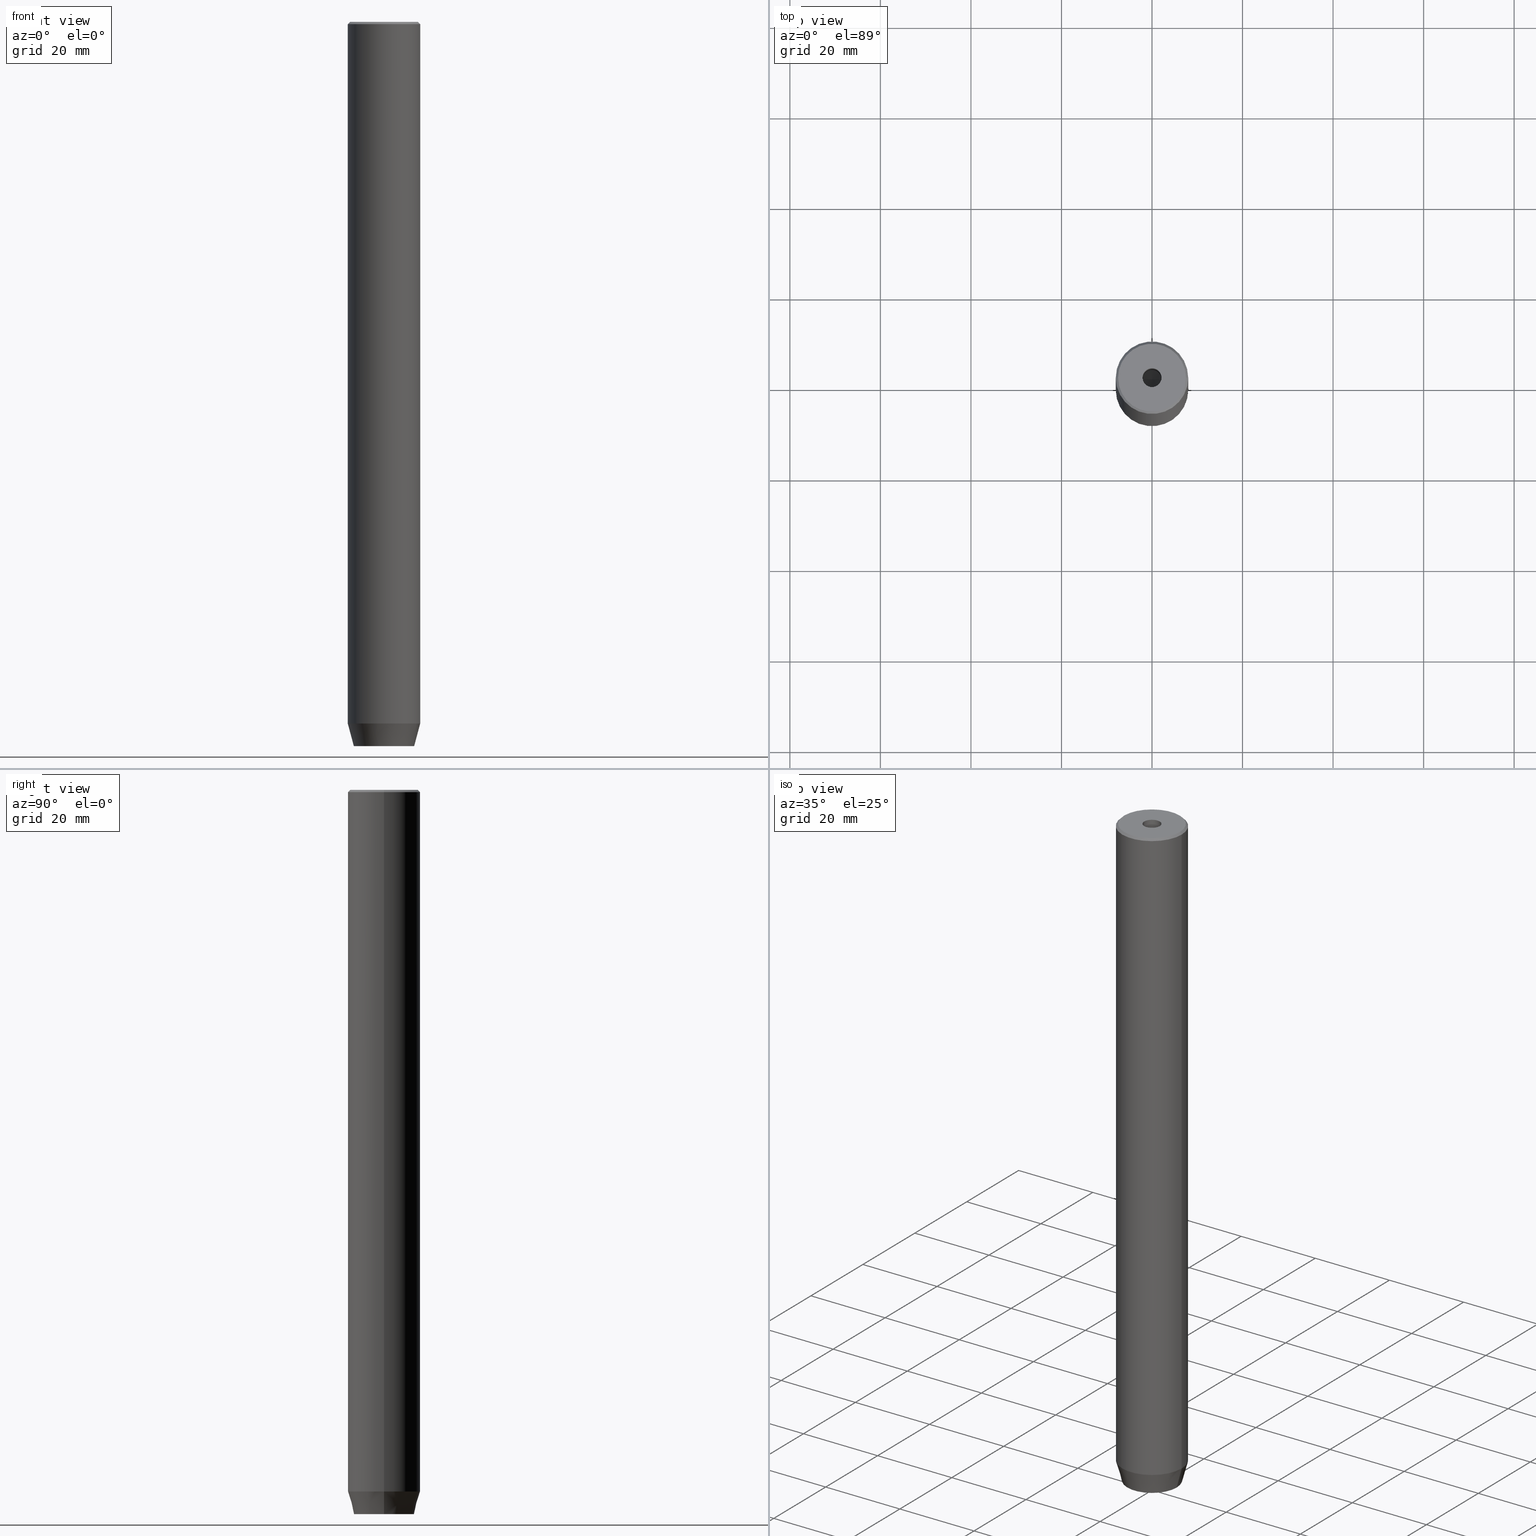
[diagram: canonical four-view strip — front | top / right | iso, engineering-drawing reading convention]
A machine part, canonical four-view strip (front | top / right | iso — engineering-drawing reading convention). The complete STEP part file that produces these views, byte-faithful:
ISO-10303-21;
HEADER;
FILE_DESCRIPTION (( 'STEP AP203' ),
    '1' );
FILE_NAME ('2d3c.STEP',
    '2024-01-02T20:38:46',
    ( '' ),
    ( '' ),
    'SwSTEP 2.0',
    'SolidWorks 2019',
    '' );
FILE_SCHEMA (( 'CONFIG_CONTROL_DESIGN' ));
ENDSEC;

DATA;
#1 = VERTEX_POINT ( 'NONE', #272 ) ;
#2 = ORIENTED_EDGE ( 'NONE', *, *, #9, .F. ) ;
#3 = CARTESIAN_POINT ( 'NONE',  ( -8.000000000000000000, 9.797174393178825657E-16, -154.9999999999999716 ) ) ;
#4 =( LENGTH_UNIT ( ) NAMED_UNIT ( * ) SI_UNIT ( .MILLI., .METRE. ) );
#5 = FACE_BOUND ( 'NONE', #535, .T. ) ;
#6 =( NAMED_UNIT ( * ) PLANE_ANGLE_UNIT ( ) SI_UNIT ( $, .RADIAN. ) );
#7 = AXIS2_PLACEMENT_3D ( 'NONE', #284, #422, #325 ) ;
#8 = LINE ( 'NONE', #125, #274 ) ;
#9 = EDGE_CURVE ( 'NONE', #267, #299, #176, .T. ) ;
#10 = CARTESIAN_POINT ( 'NONE',  ( -3.000000000000000000, -1.732050807568877859, -157.2000000000000171 ) ) ;
#11 = CALENDAR_DATE ( 2024, 2, 1 ) ;
#12 = FACE_OUTER_BOUND ( 'NONE', #342, .T. ) ;
#13 = ORIENTED_EDGE ( 'NONE', *, *, #250, .F. ) ;
#14 = ORIENTED_EDGE ( 'NONE', *, *, #431, .T. ) ;
#15 = PERSON_AND_ORGANIZATION ( #276, #462 ) ;
#16 = AXIS2_PLACEMENT_3D ( 'NONE', #577, #337, #525 ) ;
#17 = AXIS2_PLACEMENT_3D ( 'NONE', #231, #286, #238 ) ;
#18 = CARTESIAN_POINT ( 'NONE',  ( -1.499999999999999556, 2.598076211353316012, -160.0000000000000000 ) ) ;
#19 = VECTOR ( 'NONE', #202, 1000.000000000000000 ) ;
#20 = VECTOR ( 'NONE', #394, 1000.000000000000000 ) ;
#21 = COORDINATED_UNIVERSAL_TIME_OFFSET ( 1, 0, .AHEAD. ) ;
#22 = DIRECTION ( 'NONE',  ( -0.000000000000000000, -0.000000000000000000, 1.000000000000000000 ) ) ;
#23 = ORIENTED_EDGE ( 'NONE', *, *, #436, .F. ) ;
#24 = APPROVAL_STATUS ( 'not_yet_approved' ) ;
#25 = CARTESIAN_POINT ( 'NONE',  ( 0.000000000000000000, 0.000000000000000000, -154.9999999999999716 ) ) ;
#26 = ORIENTED_EDGE ( 'NONE', *, *, #271, .F. ) ;
#27 = DIRECTION ( 'NONE',  ( -0.000000000000000000, -0.000000000000000000, 1.000000000000000000 ) ) ;
#28 = AXIS2_PLACEMENT_3D ( 'NONE', #107, #409, #319 ) ;
#29 = ORIENTED_EDGE ( 'NONE', *, *, #132, .F. ) ;
#30 = ORIENTED_EDGE ( 'NONE', *, *, #390, .F. ) ;
#31 = VECTOR ( 'NONE', #388, 1000.000000000000000 ) ;
#32 = CIRCLE ( 'NONE', #154, 7.499999999999978684 ) ;
#33 = EDGE_CURVE ( 'NONE', #1, #355, #491, .T. ) ;
#34 = DIRECTION ( 'NONE',  ( 0.2588190451025212391, 0.000000000000000000, 0.9659258262890680902 ) ) ;
#35 = VERTEX_POINT ( 'NONE', #217 ) ;
#36 = EDGE_CURVE ( 'NONE', #411, #204, #487, .T. ) ;
#37 = DIRECTION ( 'NONE',  ( 0.7071067811865474617, 8.659560562354932858E-17, -0.7071067811865474617 ) ) ;
#38 = DIRECTION ( 'NONE',  ( -0.000000000000000000, -0.000000000000000000, -1.000000000000000000 ) ) ;
#39 = AXIS2_PLACEMENT_3D ( 'NONE', #314, #428, #123 ) ;
#40 = DIRECTION ( 'NONE',  ( -0.2588190451025212391, 3.169619151431771721E-17, 0.9659258262890680902 ) ) ;
#41 = CYLINDRICAL_SURFACE ( 'NONE', #194, 2.099999999999997424 ) ;
#42 = VERTEX_POINT ( 'NONE', #139 ) ;
#43 = DIRECTION ( 'NONE',  ( 1.000000000000000000, 0.000000000000000000, 0.000000000000000000 ) ) ;
#44 = ADVANCED_FACE ( 'NONE', ( #446 ), #339, .F. ) ;
#45 = DIRECTION ( 'NONE',  ( -0.000000000000000000, -0.000000000000000000, -1.000000000000000000 ) ) ;
#46 = VERTEX_POINT ( 'NONE', #384 ) ;
#47 = CC_DESIGN_APPROVAL ( #586, ( #469 ) ) ;
#48 = CONICAL_SURFACE ( 'NONE', #523, 2.099999999999996092, 1.029744258676652091 ) ;
#49 = PLANE ( 'NONE',  #92 ) ;
#50 = VERTEX_POINT ( 'NONE', #221 ) ;
#51 = CARTESIAN_POINT ( 'NONE',  ( -2.099999999999997424, 2.571758278209438506E-16, 0.000000000000000000 ) ) ;
#52 = DIRECTION ( 'NONE',  ( -0.000000000000000000, -0.000000000000000000, 1.000000000000000000 ) ) ;
#53 = EDGE_CURVE ( 'NONE', #35, #397, #253, .T. ) ;
#54 = DIRECTION ( 'NONE',  ( 0.8660254037844385966, -0.5000000000000001110, 0.000000000000000000 ) ) ;
#55 = CARTESIAN_POINT ( 'NONE',  ( 1.500000000000000222, -2.598076211353315568, -160.0000000000000000 ) ) ;
#56 = LOCAL_TIME ( 21, 38, 46.00000000000000000, #493 ) ;
#57 = APPROVAL_ROLE ( '' ) ;
#58 = DIRECTION ( 'NONE',  ( -0.000000000000000000, -0.000000000000000000, 1.000000000000000000 ) ) ;
#59 = EDGE_CURVE ( 'NONE', #117, #42, #265, .T. ) ;
#60 = DIRECTION ( 'NONE',  ( 1.000000000000000000, 0.000000000000000000, 0.000000000000000000 ) ) ;
#61 = ORIENTED_EDGE ( 'NONE', *, *, #315, .F. ) ;
#62 = SHAPE_DEFINITION_REPRESENTATION ( #222, #137 ) ;
#63 = CARTESIAN_POINT ( 'NONE',  ( -1.500000000000000666, -2.598076211353316456, -160.0000000000000000 ) ) ;
#64 = APPROVAL_STATUS ( 'not_yet_approved' ) ;
#65 = AXIS2_PLACEMENT_3D ( 'NONE', #434, #169, #131 ) ;
#66 = DIRECTION ( 'NONE',  ( 1.000000000000000000, 0.000000000000000000, 0.000000000000000000 ) ) ;
#67 = ORIENTED_EDGE ( 'NONE', *, *, #277, .T. ) ;
#68 = ADVANCED_FACE ( 'NONE', ( #205 ), #308, .F. ) ;
#69 = DIRECTION ( 'NONE',  ( -0.000000000000000000, -0.000000000000000000, 1.000000000000000000 ) ) ;
#70 = LINE ( 'NONE', #245, #232 ) ;
#71 = ORIENTED_EDGE ( 'NONE', *, *, #208, .T. ) ;
#72 = ADVANCED_FACE ( 'NONE', ( #580 ), #293, .F. ) ;
#73 = LOCAL_TIME ( 21, 38, 46.00000000000000000, #278 ) ;
#74 = CARTESIAN_POINT ( 'NONE',  ( -3.000000000000000000, -1.732050807568877859, -157.2000000000000171 ) ) ;
#75 = AXIS2_PLACEMENT_3D ( 'NONE', #508, #22, #190 ) ;
#76 = EDGE_CURVE ( 'NONE', #375, #90, #8, .T. ) ;
#77 = DIRECTION ( 'NONE',  ( 1.000000000000000000, 0.000000000000000000, 0.000000000000000000 ) ) ;
#78 = ORIENTED_EDGE ( 'NONE', *, *, #170, .T. ) ;
#79 = DIRECTION ( 'NONE',  ( 0.8660254037844387076, 0.4999999999999999445, 0.000000000000000000 ) ) ;
#80 = VERTEX_POINT ( 'NONE', #361 ) ;
#81 = FACE_OUTER_BOUND ( 'NONE', #470, .T. ) ;
#82 = VECTOR ( 'NONE', #96, 1000.000000000000000 ) ;
#83 = PLANE ( 'NONE',  #346 ) ;
#84 =( NAMED_UNIT ( * ) SI_UNIT ( $, .STERADIAN. ) SOLID_ANGLE_UNIT ( ) );
#85 = EDGE_CURVE ( 'NONE', #236, #411, #473, .T. ) ;
#86 = DIRECTION ( 'NONE',  ( 0.000000000000000000, 0.000000000000000000, -1.000000000000000000 ) ) ;
#87 = ADVANCED_FACE ( 'NONE', ( #341 ), #295, .F. ) ;
#88 = LINE ( 'NONE', #306, #82 ) ;
#89 = UNCERTAINTY_MEASURE_WITH_UNIT (LENGTH_MEASURE( 1.000000000000000082E-05 ), #4, 'distance_accuracy_value', 'NONE');
#90 = VERTEX_POINT ( 'NONE', #403 ) ;
#91 = AXIS2_PLACEMENT_3D ( 'NONE', #466, #241, #382 ) ;
#92 = AXIS2_PLACEMENT_3D ( 'NONE', #490, #263, #93 ) ;
#93 = DIRECTION ( 'NONE',  ( 2.503857664561933362E-16, -1.000000000000000000, 0.000000000000000000 ) ) ;
#94 = ORIENTED_EDGE ( 'NONE', *, *, #155, .F. ) ;
#95 = DIRECTION ( 'NONE',  ( -0.000000000000000000, -0.000000000000000000, 1.000000000000000000 ) ) ;
#96 = DIRECTION ( 'NONE',  ( -0.000000000000000000, -0.000000000000000000, -1.000000000000000000 ) ) ;
#97 = CARTESIAN_POINT ( 'NONE',  ( -3.000000000000000444, -7.511572993685800087E-16, -160.0000000000000000 ) ) ;
#98 = ORIENTED_EDGE ( 'NONE', *, *, #208, .F. ) ;
#99 = ORIENTED_EDGE ( 'NONE', *, *, #132, .T. ) ;
#100 = ORIENTED_EDGE ( 'NONE', *, *, #436, .T. ) ;
#101 = CALENDAR_DATE ( 2024, 2, 1 ) ;
#102 = VECTOR ( 'NONE', #40, 1000.000000000000114 ) ;
#103 = DIRECTION ( 'NONE',  ( -0.000000000000000000, -0.000000000000000000, 1.000000000000000000 ) ) ;
#104 = ADVANCED_FACE ( 'NONE', ( #5, #552 ), #83, .T. ) ;
#105 = PERSON_AND_ORGANIZATION ( #276, #462 ) ;
#106 = CARTESIAN_POINT ( 'NONE',  ( -6.660254037844374864, 8.976816591066587293E-16, -160.0000000000000000 ) ) ;
#107 = CARTESIAN_POINT ( 'NONE',  ( 0.000000000000000000, 0.000000000000000000, 0.000000000000000000 ) ) ;
#108 = VERTEX_POINT ( 'NONE', #134 ) ;
#109 = CARTESIAN_POINT ( 'NONE',  ( 8.000000000000000000, 0.000000000000000000, 0.000000000000000000 ) ) ;
#110 = VECTOR ( 'NONE', #444, 1000.000000000000000 ) ;
#111 = AXIS2_PLACEMENT_3D ( 'NONE', #219, #160, #452 ) ;
#112 = CARTESIAN_POINT ( 'NONE',  ( 0.000000000000000000, 0.000000000000000000, -154.9999999999999716 ) ) ;
#113 = VERTEX_POINT ( 'NONE', #10 ) ;
#114 = ORIENTED_EDGE ( 'NONE', *, *, #431, .F. ) ;
#115 = ADVANCED_FACE ( 'NONE', ( #146 ), #316, .F. ) ;
#116 = CARTESIAN_POINT ( 'NONE',  ( 0.000000000000000000, 0.000000000000000000, -1.990051048614449116E-16 ) ) ;
#117 = VERTEX_POINT ( 'NONE', #106 ) ;
#118 = CARTESIAN_POINT ( 'NONE',  ( -5.207640850796248781E-15, 0.000000000000000000, -21.26180729995787999 ) ) ;
#119 = CONICAL_SURFACE ( 'NONE', #451, 7.499999999999978684, 0.7853981633974482790 ) ;
#120 = DIRECTION ( 'NONE',  ( -0.000000000000000000, -0.000000000000000000, -1.000000000000000000 ) ) ;
#121 = ORIENTED_EDGE ( 'NONE', *, *, #53, .T. ) ;
#122 = LINE ( 'NONE', #472, #558 ) ;
#123 = DIRECTION ( 'NONE',  ( -0.8660254037844385966, 0.5000000000000001110, 0.000000000000000000 ) ) ;
#124 = LINE ( 'NONE', #157, #289 ) ;
#125 = CARTESIAN_POINT ( 'NONE',  ( 2.099999999999996092, 0.000000000000000000, -20.00000000000000000 ) ) ;
#126 = CARTESIAN_POINT ( 'NONE',  ( -2.099999999999998757, 2.571758278209440478E-16, -1.990051048614449116E-16 ) ) ;
#127 = CC_DESIGN_APPROVAL ( #348, ( #378 ) ) ;
#128 = CIRCLE ( 'NONE', #75, 2.099999999999998757 ) ;
#129 = ADVANCED_FACE ( 'NONE', ( #570 ), #379, .F. ) ;
#130 = DIRECTION ( 'NONE',  ( 0.8660254037844385966, 0.5000000000000001110, 0.000000000000000000 ) ) ;
#131 = DIRECTION ( 'NONE',  ( 1.000000000000000000, 0.000000000000000000, 0.000000000000000000 ) ) ;
#132 = EDGE_CURVE ( 'NONE', #299, #80, #501, .T. ) ;
#133 = CARTESIAN_POINT ( 'NONE',  ( -2.168404344971008868E-16, -3.464101615137754830, -157.2000000000000171 ) ) ;
#134 = CARTESIAN_POINT ( 'NONE',  ( 8.000000000000000000, 0.000000000000000000, -154.9999999999999716 ) ) ;
#135 = CC_DESIGN_PERSON_AND_ORGANIZATION_ASSIGNMENT ( #141, #180, ( #378 ) ) ;
#136 = ORIENTED_EDGE ( 'NONE', *, *, #271, .T. ) ;
#137 = ADVANCED_BREP_SHAPE_REPRESENTATION ( '2d3c', ( #529, #28 ), #405 ) ;
#138 = DATE_TIME_ROLE ( 'creation_date' ) ;
#139 = CARTESIAN_POINT ( 'NONE',  ( -8.000000000000000000, 9.797174393178825657E-16, -154.9999999999999716 ) ) ;
#140 = EDGE_LOOP ( 'NONE', ( #229, #326, #302, #540 ) ) ;
#141 = PERSON_AND_ORGANIZATION ( #276, #462 ) ;
#142 = ADVANCED_FACE ( 'NONE', ( #461 ), #214, .T. ) ;
#143 = DIRECTION ( 'NONE',  ( -0.8660254037844385966, 0.5000000000000001110, 0.000000000000000000 ) ) ;
#144 = AXIS2_PLACEMENT_3D ( 'NONE', #173, #175, #541 ) ;
#145 = APPROVAL_DATE_TIME ( #189, #166 ) ;
#146 = FACE_OUTER_BOUND ( 'NONE', #562, .T. ) ;
#147 = DATE_AND_TIME ( #224, #73 ) ;
#148 = CARTESIAN_POINT ( 'NONE',  ( 3.000000000000000000, 0.000000000000000000, -157.2000000000000171 ) ) ;
#149 = PRODUCT ( '2d3c', '2d3c', '', ( #502 ) ) ;
#150 = ORIENTED_EDGE ( 'NONE', *, *, #155, .T. ) ;
#151 = DIRECTION ( 'NONE',  ( -0.000000000000000000, -0.000000000000000000, 1.000000000000000000 ) ) ;
#152 = EDGE_LOOP ( 'NONE', ( #247, #367, #30, #61 ) ) ;
#153 = DIRECTION ( 'NONE',  ( 1.000000000000000000, 0.000000000000000000, 0.000000000000000000 ) ) ;
#154 = AXIS2_PLACEMENT_3D ( 'NONE', #565, #364, #66 ) ;
#155 = EDGE_CURVE ( 'NONE', #182, #266, #396, .T. ) ;
#156 = CARTESIAN_POINT ( 'NONE',  ( 3.000000000000000000, -1.732050807568876527, -160.0000000000000000 ) ) ;
#157 = CARTESIAN_POINT ( 'NONE',  ( -8.000000000000000000, 9.797174393178825657E-16, 0.000000000000000000 ) ) ;
#158 = DIRECTION ( 'NONE',  ( 1.000000000000000000, 0.000000000000000000, 0.000000000000000000 ) ) ;
#159 = VECTOR ( 'NONE', #120, 1000.000000000000000 ) ;
#160 = DIRECTION ( 'NONE',  ( -0.4999999999999999445, 0.8660254037844387076, 0.000000000000000000 ) ) ;
#161 = LINE ( 'NONE', #340, #338 ) ;
#162 = ORIENTED_EDGE ( 'NONE', *, *, #575, .T. ) ;
#163 = CARTESIAN_POINT ( 'NONE',  ( 0.000000000000000000, 0.000000000000000000, 0.000000000000000000 ) ) ;
#164 = LINE ( 'NONE', #252, #223 ) ;
#165 = EDGE_LOOP ( 'NONE', ( #216, #100, #150, #98 ) ) ;
#166 = APPROVAL ( #64, 'NEUR�EN�' ) ;
#167 = FACE_OUTER_BOUND ( 'NONE', #514, .T. ) ;
#168 = AXIS2_PLACEMENT_3D ( 'NONE', #112, #58, #366 ) ;
#169 = DIRECTION ( 'NONE',  ( -0.000000000000000000, -0.000000000000000000, 1.000000000000000000 ) ) ;
#170 = EDGE_CURVE ( 'NONE', #42, #108, #407, .T. ) ;
#171 = ORIENTED_EDGE ( 'NONE', *, *, #453, .F. ) ;
#172 = ORIENTED_EDGE ( 'NONE', *, *, #483, .F. ) ;
#173 = CARTESIAN_POINT ( 'NONE',  ( 0.000000000000000000, 0.000000000000000000, -157.2000000000000171 ) ) ;
#174 = DIRECTION ( 'NONE',  ( 0.8571673007021111124, 0.000000000000000000, 0.5150380749100562650 ) ) ;
#175 = DIRECTION ( 'NONE',  ( 0.000000000000000000, 0.000000000000000000, -1.000000000000000000 ) ) ;
#176 = LINE ( 'NONE', #51, #438 ) ;
#177 = VECTOR ( 'NONE', #402, 1000.000000000000000 ) ;
#178 = DIRECTION ( 'NONE',  ( -0.000000000000000000, -0.000000000000000000, 1.000000000000000000 ) ) ;
#179 = ORIENTED_EDGE ( 'NONE', *, *, #285, .F. ) ;
#180 = PERSON_AND_ORGANIZATION_ROLE ( 'design_supplier' ) ;
#181 = CARTESIAN_POINT ( 'NONE',  ( -3.000000000000000888, 1.732050807568876527, -157.2000000000000171 ) ) ;
#182 = VERTEX_POINT ( 'NONE', #512 ) ;
#183 = ORIENTED_EDGE ( 'NONE', *, *, #226, .F. ) ;
#184 = PRODUCT_RELATED_PRODUCT_CATEGORY ( 'detail', '', ( #149 ) ) ;
#185 = CYLINDRICAL_SURFACE ( 'NONE', #318, 8.000000000000000000 ) ;
#186 = COORDINATED_UNIVERSAL_TIME_OFFSET ( 1, 0, .AHEAD. ) ;
#187 = VECTOR ( 'NONE', #34, 1000.000000000000114 ) ;
#188 = FACE_OUTER_BOUND ( 'NONE', #398, .T. ) ;
#189 = DATE_AND_TIME ( #11, #297 ) ;
#190 = DIRECTION ( 'NONE',  ( 1.000000000000000000, 0.000000000000000000, 0.000000000000000000 ) ) ;
#191 = ORIENTED_EDGE ( 'NONE', *, *, #76, .F. ) ;
#192 = CARTESIAN_POINT ( 'NONE',  ( 0.000000000000000000, 0.000000000000000000, -154.9999999999999716 ) ) ;
#193 = EDGE_LOOP ( 'NONE', ( #183, #304 ) ) ;
#194 = AXIS2_PLACEMENT_3D ( 'NONE', #583, #389, #158 ) ;
#195 = DIRECTION ( 'NONE',  ( -0.8660254037844385966, 0.5000000000000001110, 0.000000000000000000 ) ) ;
#196 = EDGE_CURVE ( 'NONE', #355, #46, #560, .T. ) ;
#197 = LINE ( 'NONE', #427, #536 ) ;
#198 = LINE ( 'NONE', #530, #546 ) ;
#199 = ORIENTED_EDGE ( 'NONE', *, *, #59, .F. ) ;
#200 = EDGE_LOOP ( 'NONE', ( #569, #210, #172, #344 ) ) ;
#201 = AXIS2_PLACEMENT_3D ( 'NONE', #423, #27, #77 ) ;
#202 = DIRECTION ( 'NONE',  ( -0.000000000000000000, -0.000000000000000000, -1.000000000000000000 ) ) ;
#203 = ADVANCED_FACE ( 'NONE', ( #420 ), #380, .T. ) ;
#204 = VERTEX_POINT ( 'NONE', #556 ) ;
#205 = FACE_OUTER_BOUND ( 'NONE', #200, .T. ) ;
#206 = CARTESIAN_POINT ( 'NONE',  ( 3.000000000000000000, -1.732050807568876527, -157.2000000000000171 ) ) ;
#207 = ORIENTED_EDGE ( 'NONE', *, *, #510, .T. ) ;
#208 = EDGE_CURVE ( 'NONE', #108, #266, #456, .T. ) ;
#209 = PLANE ( 'NONE',  #327 ) ;
#210 = ORIENTED_EDGE ( 'NONE', *, *, #533, .F. ) ;
#211 = ADVANCED_FACE ( 'NONE', ( #188 ), #48, .F. ) ;
#212 = CARTESIAN_POINT ( 'NONE',  ( 6.660254037844374864, 0.000000000000000000, -160.0000000000000000 ) ) ;
#213 = LOCAL_TIME ( 21, 38, 46.00000000000000000, #186 ) ;
#214 = CONICAL_SURFACE ( 'NONE', #561, 8.000000000000000000, 0.2617993877991499629 ) ;
#215 = CARTESIAN_POINT ( 'NONE',  ( 0.000000000000000000, 0.000000000000000000, 0.000000000000000000 ) ) ;
#216 = ORIENTED_EDGE ( 'NONE', *, *, #390, .T. ) ;
#217 = CARTESIAN_POINT ( 'NONE',  ( 7.499999999999978684, 9.491012693391973982E-16, 0.000000000000000000 ) ) ;
#218 = CARTESIAN_POINT ( 'NONE',  ( 0.000000000000000000, 0.000000000000000000, -0.5000000000000213163 ) ) ;
#219 = CARTESIAN_POINT ( 'NONE',  ( -1.499999999999999556, 2.598076211353316012, -157.2000000000000171 ) ) ;
#220 = FACE_OUTER_BOUND ( 'NONE', #347, .T. ) ;
#221 = CARTESIAN_POINT ( 'NONE',  ( 3.000000000000000000, -1.732050807568876527, -157.2000000000000171 ) ) ;
#222 = PRODUCT_DEFINITION_SHAPE ( 'NONE', 'NONE',  #498 ) ;
#223 = VECTOR ( 'NONE', #38, 1000.000000000000000 ) ;
#224 = CALENDAR_DATE ( 2024, 2, 1 ) ;
#225 = DIRECTION ( 'NONE',  ( 1.000000000000000000, 0.000000000000000000, 0.000000000000000000 ) ) ;
#226 = EDGE_CURVE ( 'NONE', #521, #117, #442, .T. ) ;
#227 = DATE_AND_TIME ( #414, #585 ) ;
#228 = CARTESIAN_POINT ( 'NONE',  ( 8.000000000000000000, 0.000000000000000000, -0.5000000000000213163 ) ) ;
#229 = ORIENTED_EDGE ( 'NONE', *, *, #549, .T. ) ;
#230 = PERSON_AND_ORGANIZATION_ROLE ( 'classification_officer' ) ;
#231 = CARTESIAN_POINT ( 'NONE',  ( 3.000000000000000000, 0.000000000000000000, -157.2000000000000171 ) ) ;
#232 = VECTOR ( 'NONE', #37, 1000.000000000000114 ) ;
#233 = PERSON_AND_ORGANIZATION ( #276, #462 ) ;
#234 = CARTESIAN_POINT ( 'NONE',  ( 0.000000000000000000, 0.000000000000000000, 0.000000000000000000 ) ) ;
#235 = ORIENTED_EDGE ( 'NONE', *, *, #400, .T. ) ;
#236 = VERTEX_POINT ( 'NONE', #410 ) ;
#237 = COORDINATED_UNIVERSAL_TIME_OFFSET ( 1, 0, .AHEAD. ) ;
#238 = DIRECTION ( 'NONE',  ( -0.000000000000000000, 0.000000000000000000, -1.000000000000000000 ) ) ;
#239 = ORIENTED_EDGE ( 'NONE', *, *, #419, .T. ) ;
#240 = VERTEX_POINT ( 'NONE', #181 ) ;
#241 = DIRECTION ( 'NONE',  ( 0.000000000000000000, 0.000000000000000000, -1.000000000000000000 ) ) ;
#242 = EDGE_CURVE ( 'NONE', #204, #1, #504, .T. ) ;
#243 = APPROVAL_PERSON_ORGANIZATION ( #15, #348, #418 ) ;
#244 = AXIS2_PLACEMENT_3D ( 'NONE', #116, #151, #330 ) ;
#245 = CARTESIAN_POINT ( 'NONE',  ( 7.499999999999978684, 9.184850993605122306E-16, 0.000000000000000000 ) ) ;
#246 = DIRECTION ( 'NONE',  ( -0.000000000000000000, -0.000000000000000000, 1.000000000000000000 ) ) ;
#247 = ORIENTED_EDGE ( 'NONE', *, *, #226, .T. ) ;
#248 = CARTESIAN_POINT ( 'NONE',  ( -2.168404344971008868E-16, -3.464101615137754830, -157.2000000000000171 ) ) ;
#249 = CARTESIAN_POINT ( 'NONE',  ( 3.000000000000000000, 0.000000000000000000, -160.0000000000000000 ) ) ;
#250 = EDGE_CURVE ( 'NONE', #397, #35, #32, .T. ) ;
#251 = AXIS2_PLACEMENT_3D ( 'NONE', #218, #86, #256 ) ;
#252 = CARTESIAN_POINT ( 'NONE',  ( 3.000000000000000000, 1.732050807568876527, -157.2000000000000171 ) ) ;
#253 = CIRCLE ( 'NONE', #522, 7.499999999999978684 ) ;
#254 = CC_DESIGN_PERSON_AND_ORGANIZATION_ASSIGNMENT ( #312, #563, ( #378 ) ) ;
#255 = ORIENTED_EDGE ( 'NONE', *, *, #483, .T. ) ;
#256 = DIRECTION ( 'NONE',  ( 1.000000000000000000, 0.000000000000000000, 0.000000000000000000 ) ) ;
#257 = DIRECTION ( 'NONE',  ( 0.000000000000000000, 0.000000000000000000, -1.000000000000000000 ) ) ;
#258 = VECTOR ( 'NONE', #294, 1000.000000000000000 ) ;
#259 = CARTESIAN_POINT ( 'NONE',  ( 0.000000000000000000, 6.660254037844374864, -160.0000000000000000 ) ) ;
#260 = VECTOR ( 'NONE', #448, 1000.000000000000000 ) ;
#261 = AXIS2_PLACEMENT_3D ( 'NONE', #281, #69, #153 ) ;
#262 = AXIS2_PLACEMENT_3D ( 'NONE', #471, #246, #426 ) ;
#263 = DIRECTION ( 'NONE',  ( -1.000000000000000000, -2.503857664561933362E-16, 0.000000000000000000 ) ) ;
#264 = EDGE_LOOP ( 'NONE', ( #310, #526, #503, #207 ) ) ;
#265 = LINE ( 'NONE', #3, #102 ) ;
#266 = VERTEX_POINT ( 'NONE', #228 ) ;
#267 = VERTEX_POINT ( 'NONE', #413 ) ;
#268 = DIRECTION ( 'NONE',  ( 0.000000000000000000, -0.000000000000000000, 1.000000000000000000 ) ) ;
#269 = ADVANCED_FACE ( 'NONE', ( #12 ), #185, .T. ) ;
#270 = ORIENTED_EDGE ( 'NONE', *, *, #377, .T. ) ;
#271 = EDGE_CURVE ( 'NONE', #543, #50, #460, .T. ) ;
#272 = CARTESIAN_POINT ( 'NONE',  ( -3.000000000000000000, -1.732050807568877859, -160.0000000000000000 ) ) ;
#273 = CIRCLE ( 'NONE', #262, 2.099999999999996092 ) ;
#274 = VECTOR ( 'NONE', #174, 1000.000000000000000 ) ;
#275 = DIRECTION ( 'NONE',  ( 0.8660254037844387076, 0.4999999999999999445, 0.000000000000000000 ) ) ;
#276 = PERSON ( 'NEUR�EN�', 'NEUR�EN�', 'NEUR�EN�', ('NEUR�EN�'), ('NEUR�EN�'), ('NEUR�EN�') ) ;
#277 = EDGE_CURVE ( 'NONE', #80, #299, #128, .T. ) ;
#278 = COORDINATED_UNIVERSAL_TIME_OFFSET ( 1, 0, .AHEAD. ) ;
#279 = DIRECTION ( 'NONE',  ( 1.000000000000000000, 0.000000000000000000, 0.000000000000000000 ) ) ;
#280 = DATE_AND_TIME ( #506, #213 ) ;
#281 = CARTESIAN_POINT ( 'NONE',  ( 0.000000000000000000, 0.000000000000000000, -160.0000000000000000 ) ) ;
#282 = CIRCLE ( 'NONE', #201, 8.000000000000000000 ) ;
#283 = AXIS2_PLACEMENT_3D ( 'NONE', #192, #516, #225 ) ;
#284 = CARTESIAN_POINT ( 'NONE',  ( 0.000000000000000000, 0.000000000000000000, -0.5000000000000213163 ) ) ;
#285 = EDGE_CURVE ( 'NONE', #240, #355, #343, .T. ) ;
#286 = DIRECTION ( 'NONE',  ( 1.000000000000000000, 0.000000000000000000, -0.000000000000000000 ) ) ;
#287 = DIRECTION ( 'NONE',  ( -0.8571673007021111124, 1.049727191138617217E-16, 0.5150380749100562650 ) ) ;
#288 = CC_DESIGN_PERSON_AND_ORGANIZATION_ASSIGNMENT ( #369, #450, ( #149 ) ) ;
#289 = VECTOR ( 'NONE', #468, 1000.000000000000000 ) ;
#290 = DIRECTION ( 'NONE',  ( -2.503857664561932376E-16, 1.000000000000000000, 0.000000000000000000 ) ) ;
#291 = DIRECTION ( 'NONE',  ( -0.7071067811865474617, 0.000000000000000000, -0.7071067811865474617 ) ) ;
#292 = ORIENTED_EDGE ( 'NONE', *, *, #85, .T. ) ;
#293 = CYLINDRICAL_SURFACE ( 'NONE', #515, 2.099999999999997424 ) ;
#294 = DIRECTION ( 'NONE',  ( -0.8660254037844385966, -0.5000000000000001110, 0.000000000000000000 ) ) ;
#295 = PLANE ( 'NONE',  #328 ) ;
#296 = EDGE_LOOP ( 'NONE', ( #255, #550, #136, #305, #235, #14 ) ) ;
#297 = LOCAL_TIME ( 21, 38, 46.00000000000000000, #237 ) ;
#298 = ORIENTED_EDGE ( 'NONE', *, *, #578, .T. ) ;
#299 = VERTEX_POINT ( 'NONE', #126 ) ;
#300 = PLANE ( 'NONE',  #579 ) ;
#301 = ADVANCED_FACE ( 'NONE', ( #81 ), #524, .T. ) ;
#302 = ORIENTED_EDGE ( 'NONE', *, *, #573, .F. ) ;
#303 = FACE_BOUND ( 'NONE', #507, .T. ) ;
#304 = ORIENTED_EDGE ( 'NONE', *, *, #478, .F. ) ;
#305 = ORIENTED_EDGE ( 'NONE', *, *, #453, .T. ) ;
#306 = CARTESIAN_POINT ( 'NONE',  ( -1.084202172485504434E-16, 3.464101615137754830, -157.2000000000000171 ) ) ;
#307 = CIRCLE ( 'NONE', #65, 2.099999999999996092 ) ;
#308 = PLANE ( 'NONE',  #111 ) ;
#309 = ORIENTED_EDGE ( 'NONE', *, *, #412, .T. ) ;
#310 = ORIENTED_EDGE ( 'NONE', *, *, #242, .T. ) ;
#311 = ORIENTED_EDGE ( 'NONE', *, *, #33, .F. ) ;
#312 = PERSON_AND_ORGANIZATION ( #276, #462 ) ;
#313 = APPLICATION_CONTEXT ( 'configuration controlled 3d designs of mechanical parts and assemblies' ) ;
#314 = CARTESIAN_POINT ( 'NONE',  ( 1.500000000000000222, 2.598076211353315568, -157.2000000000000171 ) ) ;
#315 = EDGE_CURVE ( 'NONE', #521, #108, #381, .T. ) ;
#316 = PLANE ( 'NONE',  #17 ) ;
#317 = VECTOR ( 'NONE', #45, 1000.000000000000000 ) ;
#318 = AXIS2_PLACEMENT_3D ( 'NONE', #234, #321, #279 ) ;
#319 = DIRECTION ( 'NONE',  ( 1.000000000000000000, 0.000000000000000000, 0.000000000000000000 ) ) ;
#320 = ORIENTED_EDGE ( 'NONE', *, *, #76, .T. ) ;
#321 = DIRECTION ( 'NONE',  ( -0.000000000000000000, -0.000000000000000000, 1.000000000000000000 ) ) ;
#322 = APPROVAL_STATUS ( 'not_yet_approved' ) ;
#323 = DIRECTION ( 'NONE',  ( 0.000000000000000000, -1.000000000000000000, 0.000000000000000000 ) ) ;
#324 = DATE_AND_TIME ( #101, #56 ) ;
#325 = DIRECTION ( 'NONE',  ( 1.000000000000000000, 0.000000000000000000, 0.000000000000000000 ) ) ;
#326 = ORIENTED_EDGE ( 'NONE', *, *, #362, .F. ) ;
#327 = AXIS2_PLACEMENT_3D ( 'NONE', #437, #542, #130 ) ;
#328 = AXIS2_PLACEMENT_3D ( 'NONE', #475, #353, #54 ) ;
#329 = ORIENTED_EDGE ( 'NONE', *, *, #170, .F. ) ;
#330 = DIRECTION ( 'NONE',  ( 1.000000000000000000, 0.000000000000000000, 0.000000000000000000 ) ) ;
#331 = CC_DESIGN_PERSON_AND_ORGANIZATION_ASSIGNMENT ( #105, #230, ( #469 ) ) ;
#332 = LINE ( 'NONE', #581, #385 ) ;
#333 = LINE ( 'NONE', #520, #258 ) ;
#334 = EDGE_CURVE ( 'NONE', #113, #1, #519, .T. ) ;
#335 = EDGE_LOOP ( 'NONE', ( #191, #239, #298 ) ) ;
#336 = APPLICATION_CONTEXT ( 'configuration controlled 3d designs of mechanical parts and assemblies' ) ;
#337 = DIRECTION ( 'NONE',  ( -0.000000000000000000, -0.000000000000000000, 1.000000000000000000 ) ) ;
#338 = VECTOR ( 'NONE', #290, 1000.000000000000000 ) ;
#339 = PLANE ( 'NONE',  #39 ) ;
#340 = CARTESIAN_POINT ( 'NONE',  ( -3.000000000000000444, -7.511572993685800087E-16, -157.2000000000000171 ) ) ;
#341 = FACE_OUTER_BOUND ( 'NONE', #264, .T. ) ;
#342 = EDGE_LOOP ( 'NONE', ( #23, #78, #71, #162 ) ) ;
#343 = LINE ( 'NONE', #534, #19 ) ;
#344 = ORIENTED_EDGE ( 'NONE', *, *, #285, .T. ) ;
#345 = CARTESIAN_POINT ( 'NONE',  ( 1.500000000000000222, 2.598076211353315568, -160.0000000000000000 ) ) ;
#346 = AXIS2_PLACEMENT_3D ( 'NONE', #259, #441, #544 ) ;
#347 = EDGE_LOOP ( 'NONE', ( #499, #13, #309, #509 ) ) ;
#348 = APPROVAL ( #24, 'NEUR�EN�' ) ;
#349 = FACE_OUTER_BOUND ( 'NONE', #296, .T. ) ;
#350 = VERTEX_POINT ( 'NONE', #474 ) ;
#351 = ORIENTED_EDGE ( 'NONE', *, *, #374, .T. ) ;
#352 = LINE ( 'NONE', #133, #317 ) ;
#353 = DIRECTION ( 'NONE',  ( -0.5000000000000001110, -0.8660254037844385966, 0.000000000000000000 ) ) ;
#354 = ORIENTED_EDGE ( 'NONE', *, *, #362, .T. ) ;
#355 = VERTEX_POINT ( 'NONE', #574 ) ;
#356 = DIRECTION ( 'NONE',  ( -1.000000000000000000, 0.000000000000000000, 0.000000000000000000 ) ) ;
#357 = APPROVAL_PERSON_ORGANIZATION ( #233, #166, #57 ) ;
#358 = ORIENTED_EDGE ( 'NONE', *, *, #277, .F. ) ;
#359 = ORIENTED_EDGE ( 'NONE', *, *, #412, .F. ) ;
#360 = FACE_OUTER_BOUND ( 'NONE', #387, .T. ) ;
#361 = CARTESIAN_POINT ( 'NONE',  ( 2.099999999999998757, 0.000000000000000000, -1.990051048614449116E-16 ) ) ;
#362 = EDGE_CURVE ( 'NONE', #543, #236, #164, .T. ) ;
#363 = APPROVAL_DATE_TIME ( #280, #586 ) ;
#364 = DIRECTION ( 'NONE',  ( -0.000000000000000000, -0.000000000000000000, 1.000000000000000000 ) ) ;
#365 = ORIENTED_EDGE ( 'NONE', *, *, #505, .F. ) ;
#366 = DIRECTION ( 'NONE',  ( 1.000000000000000000, 0.000000000000000000, 0.000000000000000000 ) ) ;
#367 = ORIENTED_EDGE ( 'NONE', *, *, #59, .T. ) ;
#368 = VECTOR ( 'NONE', #275, 999.9999999999998863 ) ;
#369 = PERSON_AND_ORGANIZATION ( #276, #462 ) ;
#370 = ORIENTED_EDGE ( 'NONE', *, *, #334, .T. ) ;
#371 = DIRECTION ( 'NONE',  ( -0.000000000000000000, -0.000000000000000000, 1.000000000000000000 ) ) ;
#372 = APPLICATION_PROTOCOL_DEFINITION ( 'international standard', 'config_control_design', 1994, #336 ) ;
#373 = DIRECTION ( 'NONE',  ( 1.000000000000000000, 0.000000000000000000, 0.000000000000000000 ) ) ;
#374 = EDGE_CURVE ( 'NONE', #35, #266, #70, .T. ) ;
#375 = VERTEX_POINT ( 'NONE', #118 ) ;
#376 = CARTESIAN_POINT ( 'NONE',  ( 0.000000000000000000, 0.000000000000000000, -20.00000000000000000 ) ) ;
#377 = EDGE_CURVE ( 'NONE', #50, #411, #430, .T. ) ;
#378 = PRODUCT_DEFINITION_FORMATION_WITH_SPECIFIED_SOURCE ( 'LIBOVOLN�', '', #149, .NOT_KNOWN. ) ;
#379 = CONICAL_SURFACE ( 'NONE', #476, 2.099999999999996092, 1.029744258676652091 ) ;
#380 = CONICAL_SURFACE ( 'NONE', #168, 8.000000000000000000, 0.2617993877991499629 ) ;
#381 = LINE ( 'NONE', #386, #187 ) ;
#382 = DIRECTION ( 'NONE',  ( -1.000000000000000000, 0.000000000000000000, 0.000000000000000000 ) ) ;
#383 = FACE_OUTER_BOUND ( 'NONE', #480, .T. ) ;
#384 = CARTESIAN_POINT ( 'NONE',  ( -2.168404344971008868E-16, 3.464101615137753498, -160.0000000000000000 ) ) ;
#385 = VECTOR ( 'NONE', #287, 1000.000000000000000 ) ;
#386 = CARTESIAN_POINT ( 'NONE',  ( 8.000000000000000000, 0.000000000000000000, -154.9999999999999716 ) ) ;
#387 = EDGE_LOOP ( 'NONE', ( #555, #121 ) ) ;
#388 = DIRECTION ( 'NONE',  ( 0.000000000000000000, -1.000000000000000000, 0.000000000000000000 ) ) ;
#389 = DIRECTION ( 'NONE',  ( -0.000000000000000000, -0.000000000000000000, 1.000000000000000000 ) ) ;
#390 = EDGE_CURVE ( 'NONE', #108, #42, #282, .T. ) ;
#391 = LINE ( 'NONE', #481, #110 ) ;
#392 = CC_DESIGN_DATE_AND_TIME_ASSIGNMENT ( #147, #421, ( #469 ) ) ;
#393 = APPROVAL_PERSON_ORGANIZATION ( #567, #586, #459 ) ;
#394 = DIRECTION ( 'NONE',  ( -0.000000000000000000, -0.000000000000000000, 1.000000000000000000 ) ) ;
#395 = ORIENTED_EDGE ( 'NONE', *, *, #549, .F. ) ;
#396 = CIRCLE ( 'NONE', #7, 8.000000000000000000 ) ;
#397 = VERTEX_POINT ( 'NONE', #424 ) ;
#398 = EDGE_LOOP ( 'NONE', ( #496, #320, #548 ) ) ;
#399 = LINE ( 'NONE', #345, #177 ) ;
#400 = EDGE_CURVE ( 'NONE', #492, #113, #197, .T. ) ;
#401 = DIRECTION ( 'NONE',  ( -0.000000000000000000, -0.000000000000000000, 1.000000000000000000 ) ) ;
#402 = DIRECTION ( 'NONE',  ( 0.8660254037844385966, -0.5000000000000001110, 0.000000000000000000 ) ) ;
#403 = CARTESIAN_POINT ( 'NONE',  ( 2.099999999999996092, 0.000000000000000000, -20.00000000000000000 ) ) ;
#404 = PLANE ( 'NONE',  #144 ) ;
#405 =( GEOMETRIC_REPRESENTATION_CONTEXT ( 3 ) GLOBAL_UNCERTAINTY_ASSIGNED_CONTEXT ( ( #89 ) ) GLOBAL_UNIT_ASSIGNED_CONTEXT ( ( #4, #6, #84 ) ) REPRESENTATION_CONTEXT ( 'NONE', 'WORKASPACE' ) );
#406 = DIRECTION ( 'NONE',  ( 1.000000000000000000, 0.000000000000000000, 0.000000000000000000 ) ) ;
#407 = CIRCLE ( 'NONE', #283, 8.000000000000000000 ) ;
#408 = EDGE_LOOP ( 'NONE', ( #199, #582, #425, #329 ) ) ;
#409 = DIRECTION ( 'NONE',  ( 0.000000000000000000, 0.000000000000000000, 1.000000000000000000 ) ) ;
#410 = CARTESIAN_POINT ( 'NONE',  ( 3.000000000000000000, 1.732050807568876527, -160.0000000000000000 ) ) ;
#411 = VERTEX_POINT ( 'NONE', #156 ) ;
#412 = EDGE_CURVE ( 'NONE', #397, #182, #198, .T. ) ;
#413 = CARTESIAN_POINT ( 'NONE',  ( -2.099999999999996092, 2.571758278209436534E-16, -20.00000000000000000 ) ) ;
#414 = CALENDAR_DATE ( 2024, 2, 1 ) ;
#415 = DIRECTION ( 'NONE',  ( -0.000000000000000000, -0.000000000000000000, 1.000000000000000000 ) ) ;
#416 = EDGE_LOOP ( 'NONE', ( #2, #458, #482, #67 ) ) ;
#417 = VECTOR ( 'NONE', #576, 1000.000000000000000 ) ;
#418 = APPROVAL_ROLE ( '' ) ;
#419 = EDGE_CURVE ( 'NONE', #375, #267, #332, .T. ) ;
#420 = FACE_OUTER_BOUND ( 'NONE', #152, .T. ) ;
#421 = DATE_TIME_ROLE ( 'classification_date' ) ;
#422 = DIRECTION ( 'NONE',  ( 0.000000000000000000, 0.000000000000000000, -1.000000000000000000 ) ) ;
#423 = CARTESIAN_POINT ( 'NONE',  ( 0.000000000000000000, 0.000000000000000000, -154.9999999999999716 ) ) ;
#424 = CARTESIAN_POINT ( 'NONE',  ( -7.499999999999978684, 0.000000000000000000, 0.000000000000000000 ) ) ;
#425 = ORIENTED_EDGE ( 'NONE', *, *, #315, .T. ) ;
#426 = DIRECTION ( 'NONE',  ( 1.000000000000000000, 0.000000000000000000, 0.000000000000000000 ) ) ;
#427 = CARTESIAN_POINT ( 'NONE',  ( -1.500000000000000666, -2.598076211353316456, -157.2000000000000171 ) ) ;
#428 = DIRECTION ( 'NONE',  ( 0.5000000000000001110, 0.8660254037844385966, -0.000000000000000000 ) ) ;
#429 = CIRCLE ( 'NONE', #251, 8.000000000000000000 ) ;
#430 = LINE ( 'NONE', #206, #417 ) ;
#431 = EDGE_CURVE ( 'NONE', #113, #240, #161, .T. ) ;
#432 = ORIENTED_EDGE ( 'NONE', *, *, #377, .F. ) ;
#433 = CC_DESIGN_PERSON_AND_ORGANIZATION_ASSIGNMENT ( #497, #557, ( #498 ) ) ;
#434 = CARTESIAN_POINT ( 'NONE',  ( 0.000000000000000000, 0.000000000000000000, -20.00000000000000000 ) ) ;
#435 = EDGE_LOOP ( 'NONE', ( #572, #489, #171, #270 ) ) ;
#436 = EDGE_CURVE ( 'NONE', #42, #182, #124, .T. ) ;
#437 = CARTESIAN_POINT ( 'NONE',  ( 1.500000000000000222, -2.598076211353315568, -157.2000000000000171 ) ) ;
#438 = VECTOR ( 'NONE', #401, 1000.000000000000000 ) ;
#439 = DESIGN_CONTEXT ( 'detailed design', #336, 'design' ) ;
#440 = CLOSED_SHELL ( 'NONE', ( #467, #129, #301, #203, #566, #104, #553, #269, #142, #559, #68, #528, #87, #494, #115, #44, #518, #211, #72 ) ) ;
#441 = DIRECTION ( 'NONE',  ( 0.000000000000000000, 0.000000000000000000, -1.000000000000000000 ) ) ;
#442 = CIRCLE ( 'NONE', #261, 6.660254037844374864 ) ;
#443 = CC_DESIGN_DATE_AND_TIME_ASSIGNMENT ( #324, #138, ( #498 ) ) ;
#444 = DIRECTION ( 'NONE',  ( 0.8660254037844385966, -0.5000000000000001110, 0.000000000000000000 ) ) ;
#445 = ORIENTED_EDGE ( 'NONE', *, *, #196, .F. ) ;
#446 = FACE_OUTER_BOUND ( 'NONE', #140, .T. ) ;
#447 = CARTESIAN_POINT ( 'NONE',  ( 0.000000000000000000, 0.000000000000000000, 0.000000000000000000 ) ) ;
#448 = DIRECTION ( 'NONE',  ( -2.503857664561932376E-16, 1.000000000000000000, 0.000000000000000000 ) ) ;
#449 = ORIENTED_EDGE ( 'NONE', *, *, #242, .F. ) ;
#450 = PERSON_AND_ORGANIZATION_ROLE ( 'design_owner' ) ;
#451 = AXIS2_PLACEMENT_3D ( 'NONE', #551, #257, #356 ) ;
#452 = DIRECTION ( 'NONE',  ( -0.8660254037844387076, -0.4999999999999999445, 0.000000000000000000 ) ) ;
#453 = EDGE_CURVE ( 'NONE', #50, #492, #333, .T. ) ;
#454 = APPROVAL_DATE_TIME ( #227, #348 ) ;
#455 = ORIENTED_EDGE ( 'NONE', *, *, #33, .T. ) ;
#456 = LINE ( 'NONE', #109, #463 ) ;
#457 = EDGE_CURVE ( 'NONE', #90, #267, #273, .T. ) ;
#458 = ORIENTED_EDGE ( 'NONE', *, *, #457, .F. ) ;
#459 = APPROVAL_ROLE ( '' ) ;
#460 = LINE ( 'NONE', #148, #477 ) ;
#461 = FACE_OUTER_BOUND ( 'NONE', #408, .T. ) ;
#462 = ORGANIZATION ( 'NEUR�EN�', 'NEUR�EN�', '' ) ;
#463 = VECTOR ( 'NONE', #465, 1000.000000000000000 ) ;
#464 = SECURITY_CLASSIFICATION_LEVEL ( 'unclassified' ) ;
#465 = DIRECTION ( 'NONE',  ( -0.000000000000000000, -0.000000000000000000, 1.000000000000000000 ) ) ;
#466 = CARTESIAN_POINT ( 'NONE',  ( 0.000000000000000000, 0.000000000000000000, 0.000000000000000000 ) ) ;
#467 = ADVANCED_FACE ( 'NONE', ( #383 ), #41, .F. ) ;
#468 = DIRECTION ( 'NONE',  ( -0.000000000000000000, -0.000000000000000000, 1.000000000000000000 ) ) ;
#469 = SECURITY_CLASSIFICATION ( '', '', #464 ) ;
#470 = EDGE_LOOP ( 'NONE', ( #564, #351, #94, #359 ) ) ;
#471 = CARTESIAN_POINT ( 'NONE',  ( 0.000000000000000000, 0.000000000000000000, -20.00000000000000000 ) ) ;
#472 = CARTESIAN_POINT ( 'NONE',  ( -1.499999999999999556, 2.598076211353316012, -157.2000000000000171 ) ) ;
#473 = LINE ( 'NONE', #249, #31 ) ;
#474 = CARTESIAN_POINT ( 'NONE',  ( -1.084202172485504434E-16, 3.464101615137754830, -157.2000000000000171 ) ) ;
#475 = CARTESIAN_POINT ( 'NONE',  ( -1.500000000000000666, -2.598076211353316456, -157.2000000000000171 ) ) ;
#476 = AXIS2_PLACEMENT_3D ( 'NONE', #568, #103, #373 ) ;
#477 = VECTOR ( 'NONE', #323, 1000.000000000000000 ) ;
#478 = EDGE_CURVE ( 'NONE', #117, #521, #571, .T. ) ;
#479 = FACE_OUTER_BOUND ( 'NONE', #165, .T. ) ;
#480 = EDGE_LOOP ( 'NONE', ( #511, #545, #99, #365 ) ) ;
#481 = CARTESIAN_POINT ( 'NONE',  ( 1.500000000000000222, 2.598076211353315568, -157.2000000000000171 ) ) ;
#482 = ORIENTED_EDGE ( 'NONE', *, *, #505, .T. ) ;
#483 = EDGE_CURVE ( 'NONE', #240, #350, #122, .T. ) ;
#484 = CARTESIAN_POINT ( 'NONE',  ( 2.099999999999997424, 0.000000000000000000, 0.000000000000000000 ) ) ;
#485 = CC_DESIGN_SECURITY_CLASSIFICATION ( #469, ( #378 ) ) ;
#486 = DIRECTION ( 'NONE',  ( 1.000000000000000000, 0.000000000000000000, 0.000000000000000000 ) ) ;
#487 = LINE ( 'NONE', #55, #537 ) ;
#488 = CC_DESIGN_APPROVAL ( #166, ( #498 ) ) ;
#489 = ORIENTED_EDGE ( 'NONE', *, *, #510, .F. ) ;
#490 = CARTESIAN_POINT ( 'NONE',  ( -3.000000000000000444, -7.511572993685800087E-16, -157.2000000000000171 ) ) ;
#491 = LINE ( 'NONE', #97, #260 ) ;
#492 = VERTEX_POINT ( 'NONE', #248 ) ;
#493 = COORDINATED_UNIVERSAL_TIME_OFFSET ( 1, 0, .AHEAD. ) ;
#494 = ADVANCED_FACE ( 'NONE', ( #539 ), #209, .F. ) ;
#495 = DIRECTION ( 'NONE',  ( -0.8660254037844385966, -0.5000000000000001110, 0.000000000000000000 ) ) ;
#496 = ORIENTED_EDGE ( 'NONE', *, *, #419, .F. ) ;
#497 = PERSON_AND_ORGANIZATION ( #276, #462 ) ;
#498 = PRODUCT_DEFINITION ( 'NEZN�M�', '', #378, #439 ) ;
#499 = ORIENTED_EDGE ( 'NONE', *, *, #374, .F. ) ;
#500 = DIRECTION ( 'NONE',  ( 1.000000000000000000, 0.000000000000000000, 0.000000000000000000 ) ) ;
#501 = CIRCLE ( 'NONE', #244, 2.099999999999998757 ) ;
#502 = MECHANICAL_CONTEXT ( 'NONE', #313, 'mechanical' ) ;
#503 = ORIENTED_EDGE ( 'NONE', *, *, #400, .F. ) ;
#504 = LINE ( 'NONE', #63, #538 ) ;
#505 = EDGE_CURVE ( 'NONE', #90, #80, #584, .T. ) ;
#506 = CALENDAR_DATE ( 2024, 2, 1 ) ;
#507 = EDGE_LOOP ( 'NONE', ( #358, #29 ) ) ;
#508 = CARTESIAN_POINT ( 'NONE',  ( 0.000000000000000000, 0.000000000000000000, -1.990051048614449116E-16 ) ) ;
#509 = ORIENTED_EDGE ( 'NONE', *, *, #575, .F. ) ;
#510 = EDGE_CURVE ( 'NONE', #492, #204, #352, .T. ) ;
#511 = ORIENTED_EDGE ( 'NONE', *, *, #578, .F. ) ;
#512 = CARTESIAN_POINT ( 'NONE',  ( -8.000000000000000000, 9.797174393178825657E-16, -0.5000000000000213163 ) ) ;
#513 = AXIS2_PLACEMENT_3D ( 'NONE', #447, #52, #43 ) ;
#514 = EDGE_LOOP ( 'NONE', ( #455, #179, #114, #370 ) ) ;
#515 = AXIS2_PLACEMENT_3D ( 'NONE', #531, #95, #527 ) ;
#516 = DIRECTION ( 'NONE',  ( -0.000000000000000000, -0.000000000000000000, 1.000000000000000000 ) ) ;
#517 = ORIENTED_EDGE ( 'NONE', *, *, #85, .F. ) ;
#518 = ADVANCED_FACE ( 'NONE', ( #349 ), #404, .T. ) ;
#519 = LINE ( 'NONE', #74, #159 ) ;
#520 = CARTESIAN_POINT ( 'NONE',  ( 1.500000000000000222, -2.598076211353315568, -157.2000000000000171 ) ) ;
#521 = VERTEX_POINT ( 'NONE', #212 ) ;
#522 = AXIS2_PLACEMENT_3D ( 'NONE', #163, #178, #406 ) ;
#523 = AXIS2_PLACEMENT_3D ( 'NONE', #376, #371, #60 ) ;
#524 = CONICAL_SURFACE ( 'NONE', #91, 7.499999999999978684, 0.7853981633974482790 ) ;
#525 = DIRECTION ( 'NONE',  ( 1.000000000000000000, 0.000000000000000000, 0.000000000000000000 ) ) ;
#526 = ORIENTED_EDGE ( 'NONE', *, *, #334, .F. ) ;
#527 = DIRECTION ( 'NONE',  ( 1.000000000000000000, 0.000000000000000000, 0.000000000000000000 ) ) ;
#528 = ADVANCED_FACE ( 'NONE', ( #167 ), #49, .F. ) ;
#529 = MANIFOLD_SOLID_BREP ( 'Vrt�k z�vitn�ku pro M5 z�vit1', #440 ) ;
#530 = CARTESIAN_POINT ( 'NONE',  ( -7.499999999999978684, 0.000000000000000000, 0.000000000000000000 ) ) ;
#531 = CARTESIAN_POINT ( 'NONE',  ( 0.000000000000000000, 0.000000000000000000, 0.000000000000000000 ) ) ;
#532 = ORIENTED_EDGE ( 'NONE', *, *, #36, .F. ) ;
#533 = EDGE_CURVE ( 'NONE', #350, #46, #88, .T. ) ;
#534 = CARTESIAN_POINT ( 'NONE',  ( -3.000000000000000888, 1.732050807568876527, -157.2000000000000171 ) ) ;
#535 = EDGE_LOOP ( 'NONE', ( #445, #311, #449, #532, #517, #395 ) ) ;
#536 = VECTOR ( 'NONE', #195, 1000.000000000000000 ) ;
#537 = VECTOR ( 'NONE', #495, 1000.000000000000000 ) ;
#538 = VECTOR ( 'NONE', #143, 1000.000000000000000 ) ;
#539 = FACE_OUTER_BOUND ( 'NONE', #435, .T. ) ;
#540 = ORIENTED_EDGE ( 'NONE', *, *, #533, .T. ) ;
#541 = DIRECTION ( 'NONE',  ( -1.000000000000000000, 0.000000000000000000, -0.000000000000000000 ) ) ;
#542 = DIRECTION ( 'NONE',  ( 0.5000000000000001110, -0.8660254037844385966, 0.000000000000000000 ) ) ;
#543 = VERTEX_POINT ( 'NONE', #587 ) ;
#544 = DIRECTION ( 'NONE',  ( -1.000000000000000000, 0.000000000000000000, -0.000000000000000000 ) ) ;
#545 = ORIENTED_EDGE ( 'NONE', *, *, #9, .T. ) ;
#546 = VECTOR ( 'NONE', #291, 1000.000000000000114 ) ;
#547 = CYLINDRICAL_SURFACE ( 'NONE', #513, 8.000000000000000000 ) ;
#548 = ORIENTED_EDGE ( 'NONE', *, *, #457, .T. ) ;
#549 = EDGE_CURVE ( 'NONE', #46, #236, #399, .T. ) ;
#550 = ORIENTED_EDGE ( 'NONE', *, *, #573, .T. ) ;
#551 = CARTESIAN_POINT ( 'NONE',  ( 0.000000000000000000, 0.000000000000000000, 0.000000000000000000 ) ) ;
#552 = FACE_OUTER_BOUND ( 'NONE', #193, .T. ) ;
#553 = ADVANCED_FACE ( 'NONE', ( #303, #360 ), #300, .T. ) ;
#554 = APPLICATION_PROTOCOL_DEFINITION ( 'international standard', 'config_control_design', 1994, #313 ) ;
#555 = ORIENTED_EDGE ( 'NONE', *, *, #250, .T. ) ;
#556 = CARTESIAN_POINT ( 'NONE',  ( -2.168404344971008868E-16, -3.464101615137754830, -160.0000000000000000 ) ) ;
#557 = PERSON_AND_ORGANIZATION_ROLE ( 'creator' ) ;
#558 = VECTOR ( 'NONE', #79, 999.9999999999998863 ) ;
#559 = ADVANCED_FACE ( 'NONE', ( #220 ), #119, .T. ) ;
#560 = LINE ( 'NONE', #18, #368 ) ;
#561 = AXIS2_PLACEMENT_3D ( 'NONE', #25, #415, #500 ) ;
#562 = EDGE_LOOP ( 'NONE', ( #292, #432, #26, #354 ) ) ;
#563 = PERSON_AND_ORGANIZATION_ROLE ( 'creator' ) ;
#564 = ORIENTED_EDGE ( 'NONE', *, *, #53, .F. ) ;
#565 = CARTESIAN_POINT ( 'NONE',  ( 0.000000000000000000, 0.000000000000000000, 0.000000000000000000 ) ) ;
#566 = ADVANCED_FACE ( 'NONE', ( #479 ), #547, .T. ) ;
#567 = PERSON_AND_ORGANIZATION ( #276, #462 ) ;
#568 = CARTESIAN_POINT ( 'NONE',  ( 0.000000000000000000, 0.000000000000000000, -20.00000000000000000 ) ) ;
#569 = ORIENTED_EDGE ( 'NONE', *, *, #196, .T. ) ;
#570 = FACE_OUTER_BOUND ( 'NONE', #335, .T. ) ;
#571 = CIRCLE ( 'NONE', #16, 6.660254037844374864 ) ;
#572 = ORIENTED_EDGE ( 'NONE', *, *, #36, .T. ) ;
#573 = EDGE_CURVE ( 'NONE', #350, #543, #391, .T. ) ;
#574 = CARTESIAN_POINT ( 'NONE',  ( -3.000000000000000888, 1.732050807568876527, -160.0000000000000000 ) ) ;
#575 = EDGE_CURVE ( 'NONE', #266, #182, #429, .T. ) ;
#576 = DIRECTION ( 'NONE',  ( -0.000000000000000000, -0.000000000000000000, -1.000000000000000000 ) ) ;
#577 = CARTESIAN_POINT ( 'NONE',  ( 0.000000000000000000, 0.000000000000000000, -160.0000000000000000 ) ) ;
#578 = EDGE_CURVE ( 'NONE', #267, #90, #307, .T. ) ;
#579 = AXIS2_PLACEMENT_3D ( 'NONE', #215, #268, #486 ) ;
#580 = FACE_OUTER_BOUND ( 'NONE', #416, .T. ) ;
#581 = CARTESIAN_POINT ( 'NONE',  ( -2.099999999999996092, 2.571758278209436534E-16, -20.00000000000000000 ) ) ;
#582 = ORIENTED_EDGE ( 'NONE', *, *, #478, .T. ) ;
#583 = CARTESIAN_POINT ( 'NONE',  ( 0.000000000000000000, 0.000000000000000000, 0.000000000000000000 ) ) ;
#584 = LINE ( 'NONE', #484, #20 ) ;
#585 = LOCAL_TIME ( 21, 38, 46.00000000000000000, #21 ) ;
#586 = APPROVAL ( #322, 'NEUR�EN�' ) ;
#587 = CARTESIAN_POINT ( 'NONE',  ( 3.000000000000000000, 1.732050807568876527, -157.2000000000000171 ) ) ;
ENDSEC;
END-ISO-10303-21;
